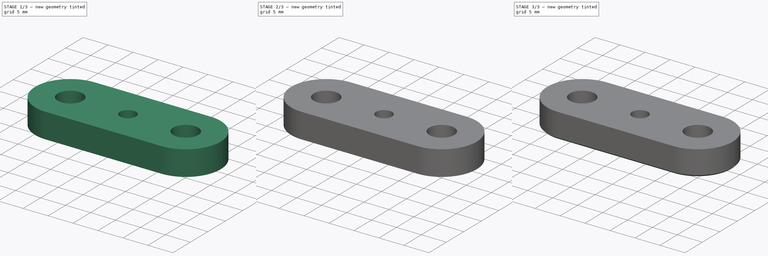
[diagram: build sequence overview — one tinted view per stage of 3, left to right]
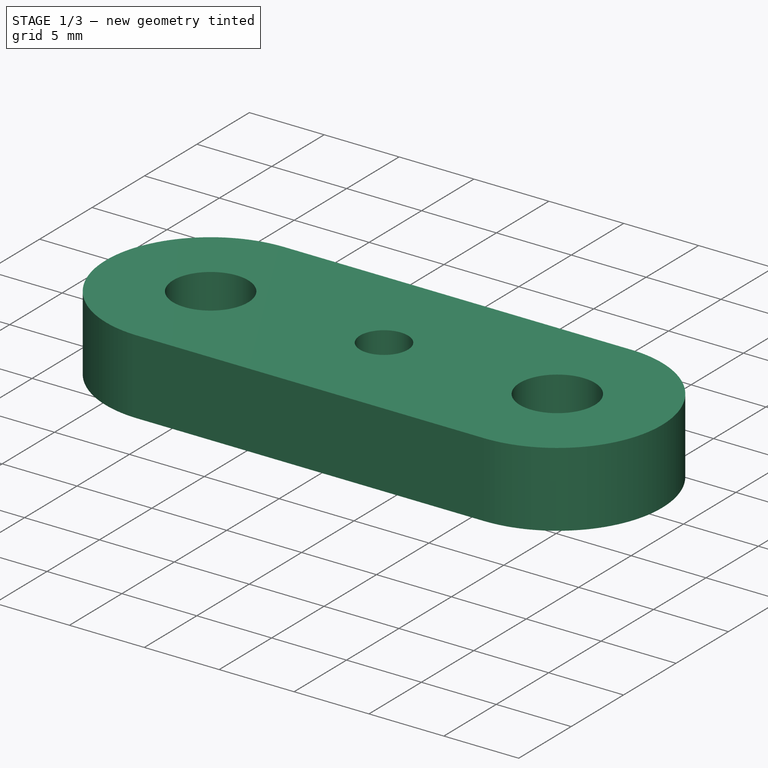
[diagram: stage 1 of 3 — iso view after this stage's code; geometry added in this stage tinted green]
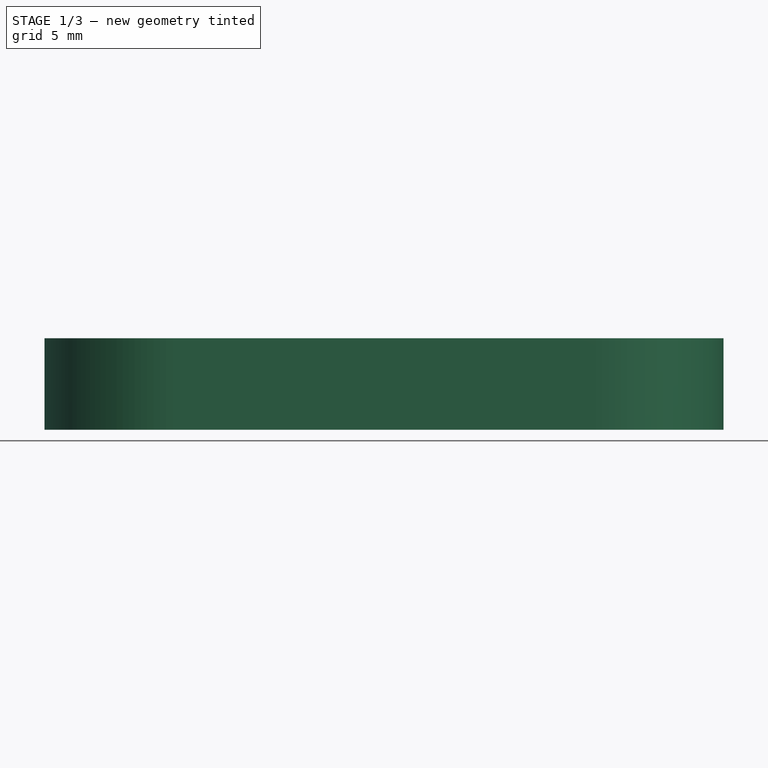
[diagram: stage 1 of 3 — front view after this stage's code; geometry added in this stage tinted green]
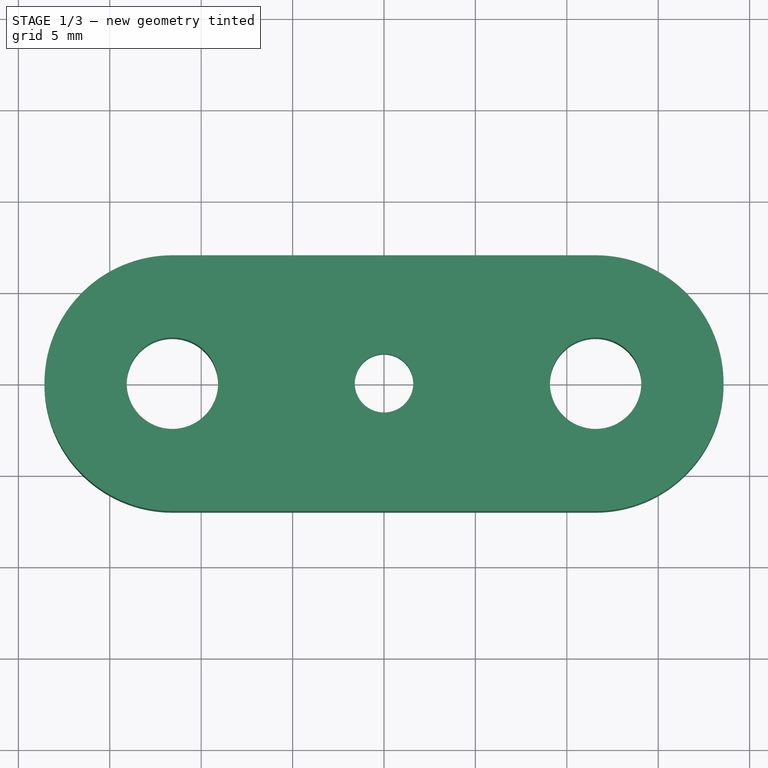
[diagram: stage 1 of 3 — top view after this stage's code; geometry added in this stage tinted green]
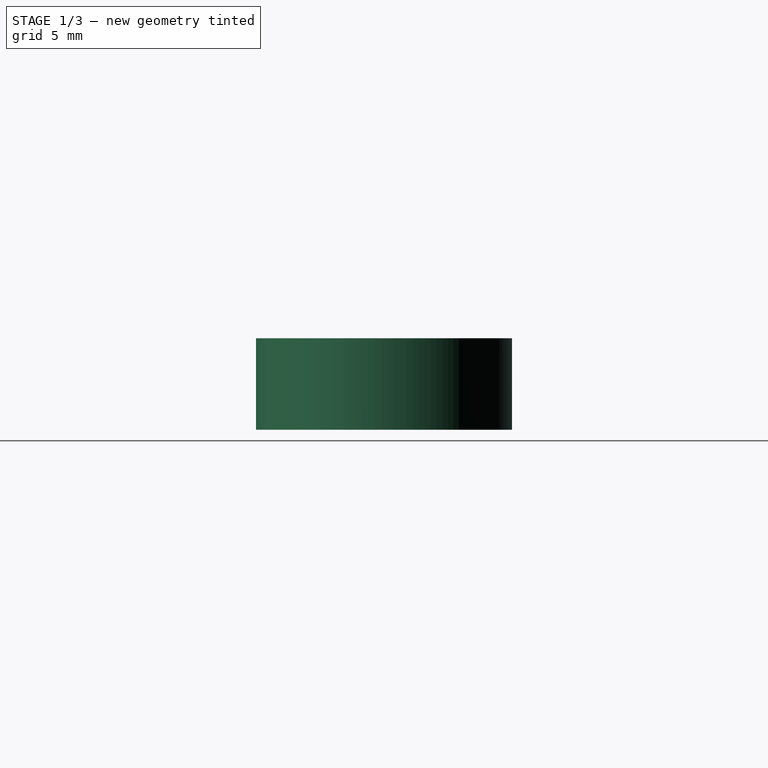
[diagram: stage 1 of 3 — right view after this stage's code; geometry added in this stage tinted green]
FCSTD DOCUMENT  (FreeCAD 0.15R4671 (Git))
Label: Gegenlager Halterung Praezisionswelle Z-Achse -Top
License: All rights reserved
LicenseURL: http://en.wikipedia.org/wiki/All_rights_reserved
objects: Sketcher::SketchObject×3, PartDesign::Pad×2, PartDesign::Chamfer×2, PartDesign::Pocket×1
note: 11 computed .brp shape members not serialized (recipe doc carries the construction recipe); baked Part::Feature solids carry a one-line shape summary decoded from their .brp

FEATURE [Sketcher::SketchObject] Sketch
  sketch-geometry (7):
    g0: ArcOfCircle CenterX=-11.575 CenterY=0 CenterZ=0 NormalX=0 NormalY=0 NormalZ=1 Radius=7 StartAngle=1.5708 EndAngle=4.71239
    g1: ArcOfCircle CenterX=11.575 CenterY=0 CenterZ=0 NormalX=0 NormalY=0 NormalZ=1 Radius=7 StartAngle=4.71239 EndAngle=7.85398
    g2: LineSegment StartX=-11.575 StartY=-7 StartZ=0 EndX=11.575 EndY=-7 EndZ=0
    g3: LineSegment StartX=-11.575 StartY=7 StartZ=0 EndX=11.575 EndY=7 EndZ=0
    g4: Circle CenterX=-11.575 CenterY=0 CenterZ=0 NormalX=0 NormalY=0 NormalZ=1 Radius=2.5
    g5: Circle CenterX=11.575 CenterY=0 CenterZ=0 NormalX=0 NormalY=0 NormalZ=1 Radius=2.5
    g6: Circle CenterX=0 CenterY=0 CenterZ=0 NormalX=0 NormalY=0 NormalZ=1 Radius=1.6
  constraints (15):
    c: Tangent(g0,g3) = 1.5708
    c: Tangent(g0,g2) = -1.5708
    c: Tangent(g2,g1) = -1.5708
    c: Tangent(g3,g1) = 1.5708
    c: Horizontal(g2)
    c: Symmetric(g0,g1,g-2)
    c: Symmetric(g1,g1,g-1)
    c: Radius(g1) = 7
    c: DistanceX(g-1,g1) = 11.575
    c: Coincident(g4,g0)
    c: Coincident(g5,g1)
    c: Radius(g5) = 2.5
    c: Equal(g5,g4)
    c: Coincident(g6,g-1)
    c: Radius(g6) = 1.6
FEATURE [PartDesign::Pad] Pad
  Length = 5
  Length2 = 100
  Sketch = -> Sketch
  Type = 0
FEATURE [Sketcher::SketchObject] Sketch001
  Placement = pos=(0,0,0) rot=(1,0,0;3.14159rad)
  Support = -> Pad [Face8]
  sketch-geometry (7):
    g0: LineSegment StartX=1.60215 StartY=2.775 StartZ=0 EndX=-1.60215 EndY=2.775 EndZ=0
    g1: LineSegment StartX=-1.60215 StartY=2.775 StartZ=0 EndX=-3.20429 EndY=0 EndZ=0
    g2: LineSegment StartX=-3.20429 StartY=0 StartZ=0 EndX=-1.60215 EndY=-2.775 EndZ=0
    g3: LineSegment StartX=-1.60215 StartY=-2.775 StartZ=0 EndX=1.60215 EndY=-2.775 EndZ=0
    g4: LineSegment StartX=1.60215 StartY=-2.775 StartZ=0 EndX=3.20429 EndY=0 EndZ=0
    g5: LineSegment StartX=3.20429 StartY=0 StartZ=0 EndX=1.60215 EndY=2.775 EndZ=0
    g6: Circle [constr] CenterX=0 CenterY=0 CenterZ=0 NormalX=0 NormalY=0 NormalZ=1 Radius=3.20429
  constraints (17):
    c: Coincident(g0,g1)
    c: Coincident(g1,g2)
    c: Coincident(g2,g3)
    c: Coincident(g3,g4)
    c: Coincident(g4,g5)
    c: Coincident(g5,g0)
    c: Equal(g0, g1-g5) x5
    c: PointOnObject(g0,g6)
    c: PointOnObject(g1,g6)
    c: PointOnObject(g2,g6)
    c: PointOnObject(g3,g6)
    c: PointOnObject(g4,g6)
    c: PointOnObject(g5,g6)
    c: Coincident(g3,g-1)
    c: Distance(g0,g3) = 5.55
    c: Coincident(g6,g-1)
    c: Horizontal(g0)
FEATURE [PartDesign::Pocket] Pocket
  Length = 2.5
  Sketch = -> Sketch001
  Type = 0
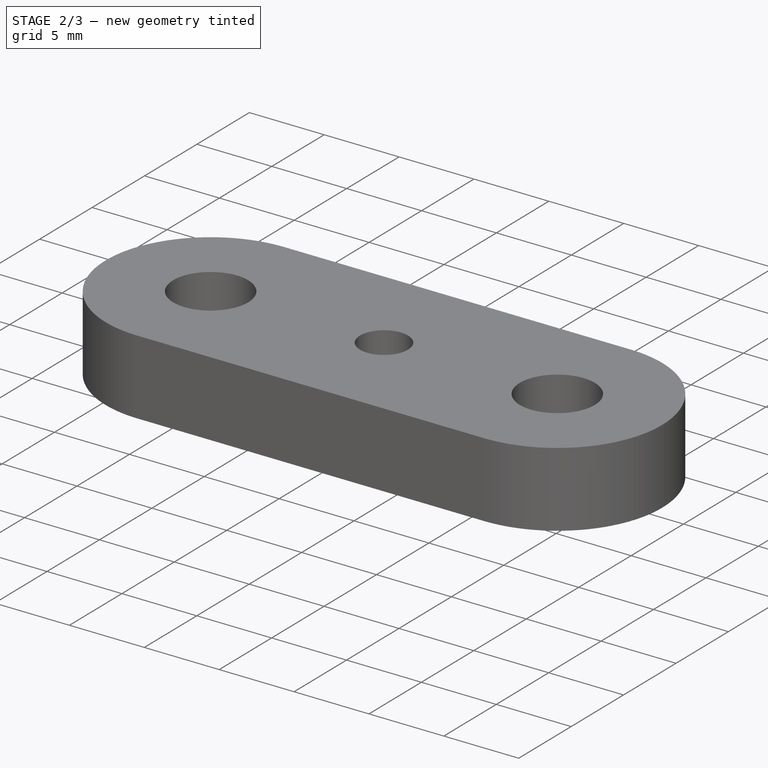
[diagram: stage 2 of 3 — iso view after this stage's code; geometry added in this stage tinted green]
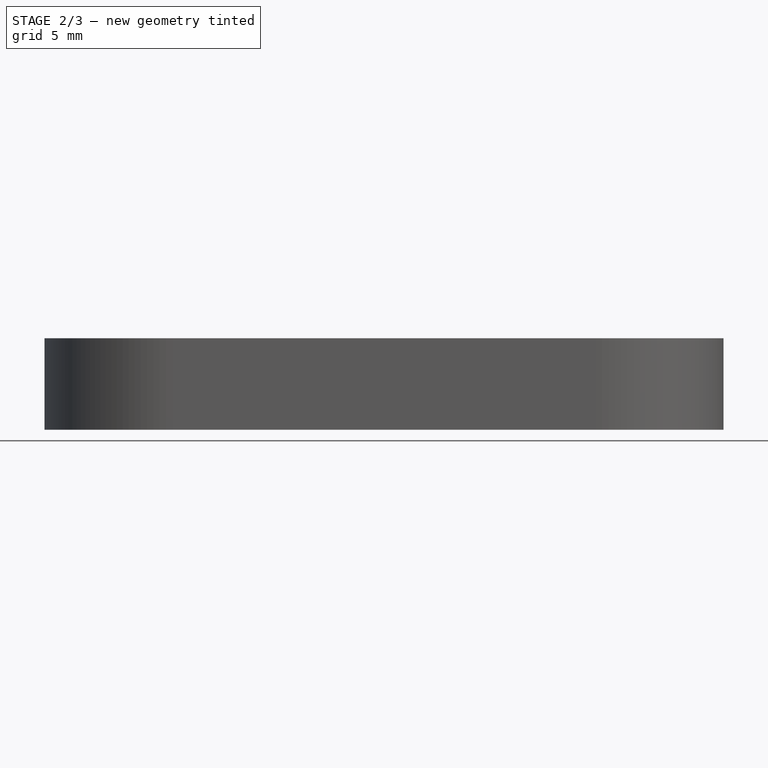
[diagram: stage 2 of 3 — front view after this stage's code; geometry added in this stage tinted green]
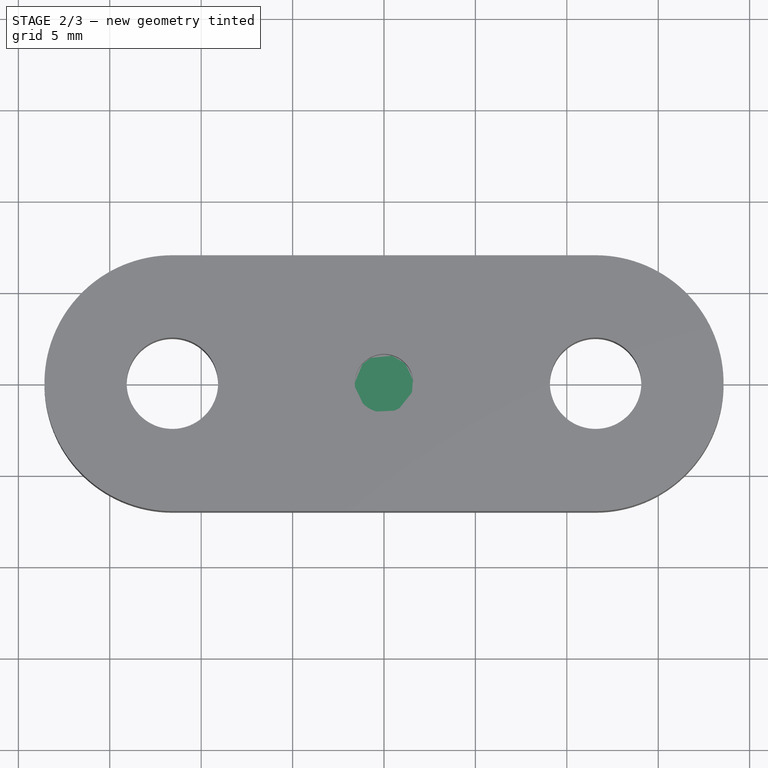
[diagram: stage 2 of 3 — top view after this stage's code; geometry added in this stage tinted green]
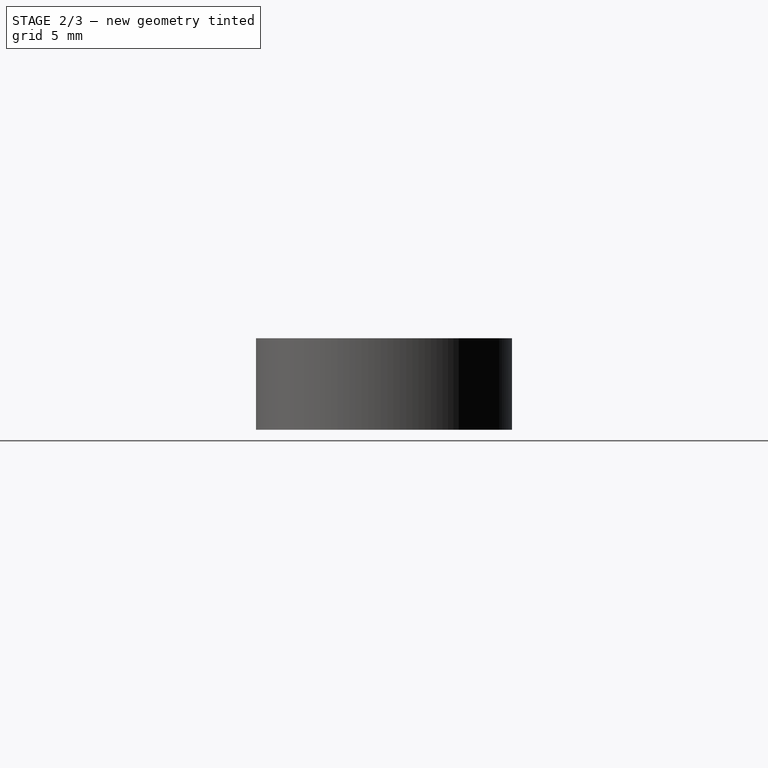
[diagram: stage 2 of 3 — right view after this stage's code; geometry added in this stage tinted green]
FEATURE [Sketcher::SketchObject] Sketch002
  ExternalGeometry = -> [Pocket]
  Placement = pos=(0,0,2.5) rot=(1,0,0;3.14159rad)
  Support = -> Pocket [Face16]
  sketch-geometry (1):
    g0: Circle CenterX=0 CenterY=0 CenterZ=0 NormalX=0 NormalY=0 NormalZ=1 Radius=1.6
  constraints (2):
    c: Coincident(g0,g-1)
    c: Equal(g-3,g0)
FEATURE [PartDesign::Pad] Pad001
  Length = 0.3
  Length2 = 100
  Reversed = true
  Sketch = -> Sketch002
  Type = 0
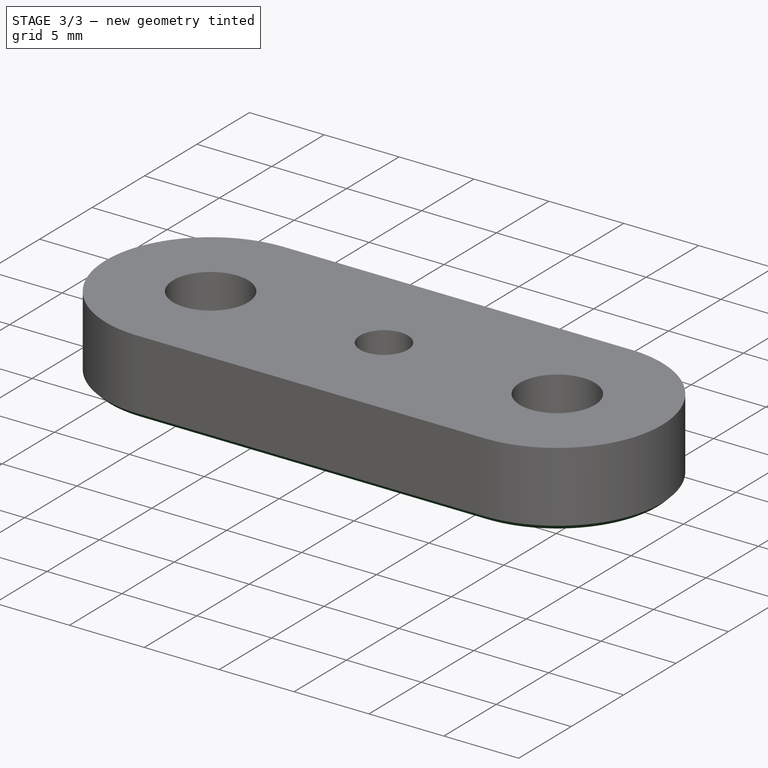
[diagram: stage 3 of 3 — iso view after this stage's code; geometry added in this stage tinted green]
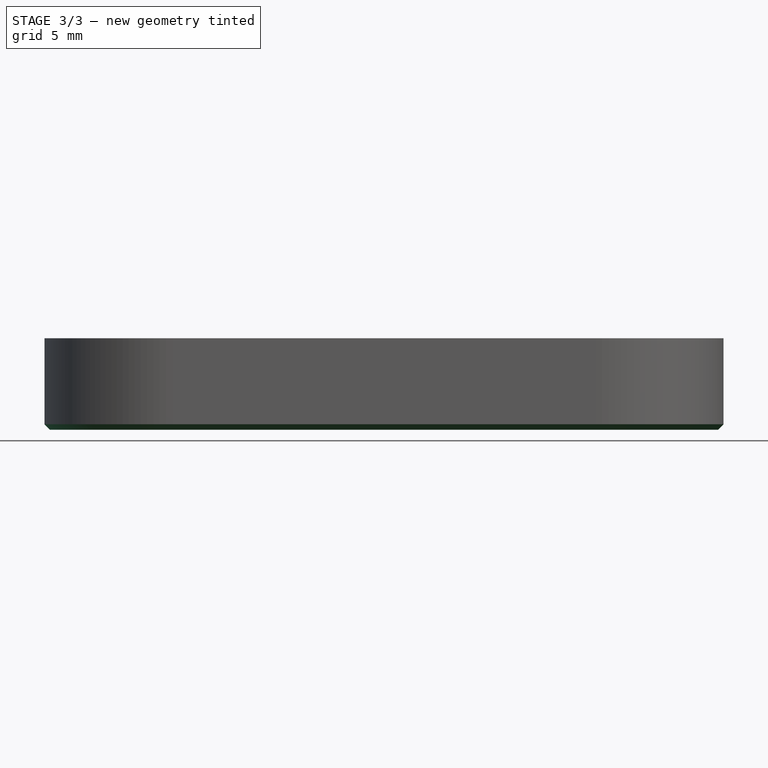
[diagram: stage 3 of 3 — front view after this stage's code; geometry added in this stage tinted green]
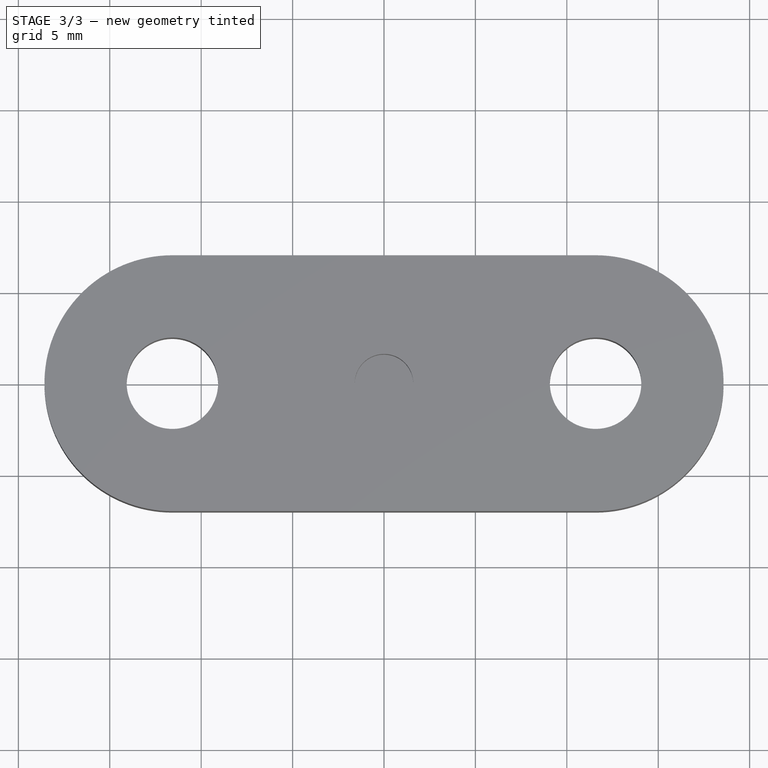
[diagram: stage 3 of 3 — top view after this stage's code; geometry added in this stage tinted green]
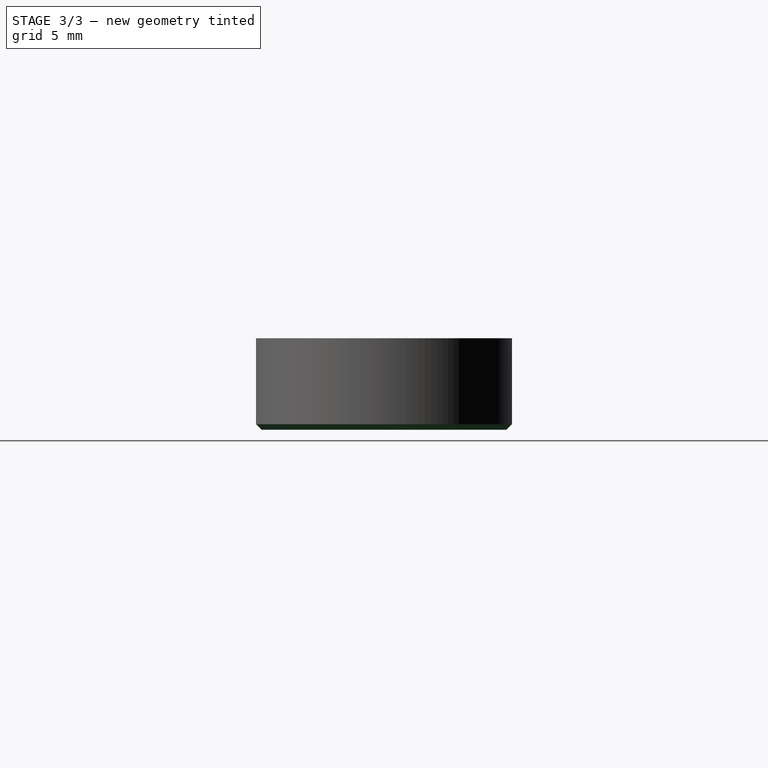
[diagram: stage 3 of 3 — right view after this stage's code; geometry added in this stage tinted green]
FEATURE [PartDesign::Chamfer] Chamfer
  Base = -> Pad001 [Edge12,Edge19,Edge14,Edge15,Edge16,Edge17,Edge18,Edge13]
  Size = 0.3
FEATURE [PartDesign::Chamfer] Chamfer001
  Base = -> Chamfer [Edge3]
  Size = 0.3
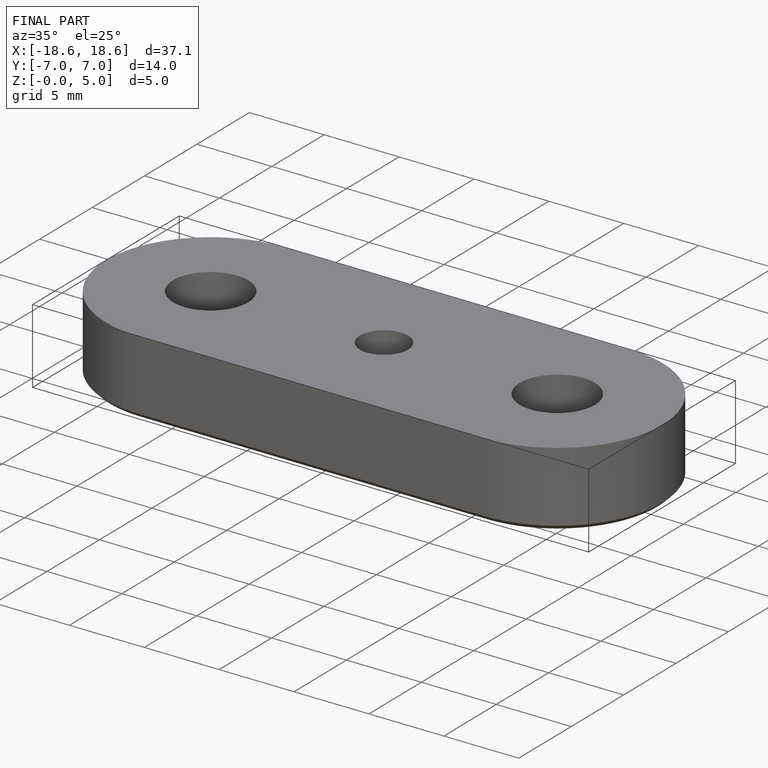
[diagram: finished part — iso view with bounding-box wireframe]
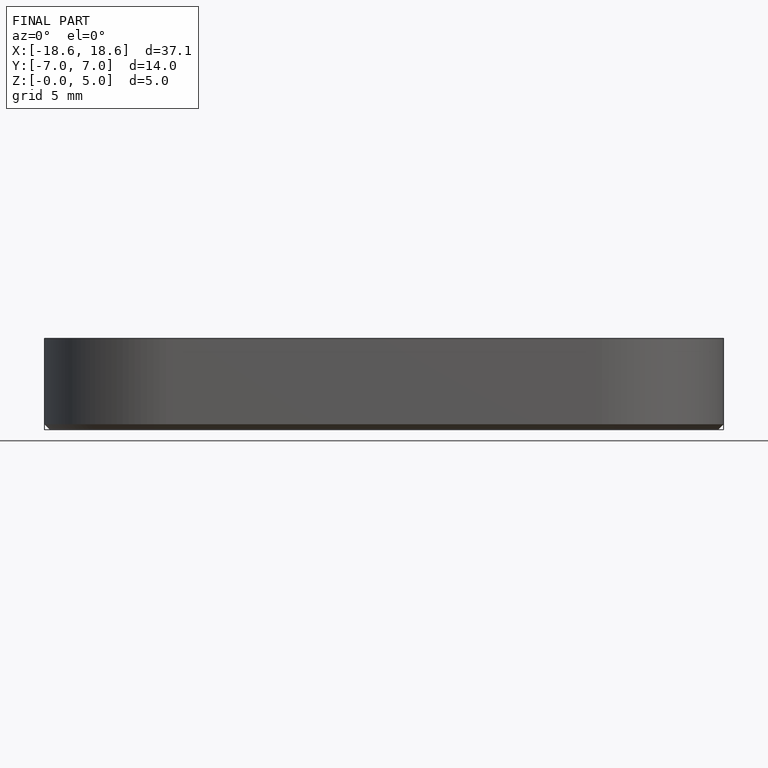
[diagram: finished part — front view with bounding-box wireframe]
